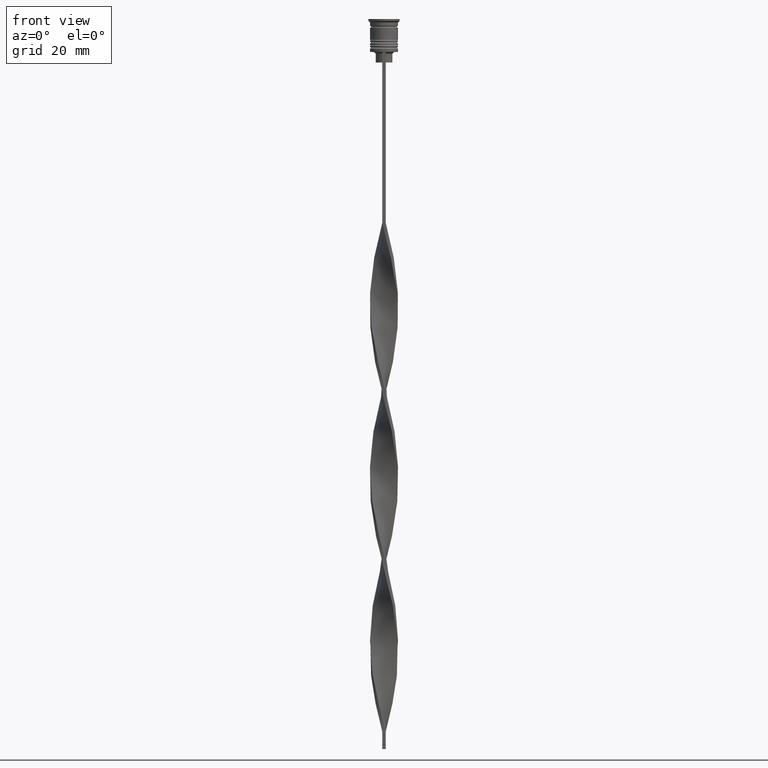
[diagram: clean part render]
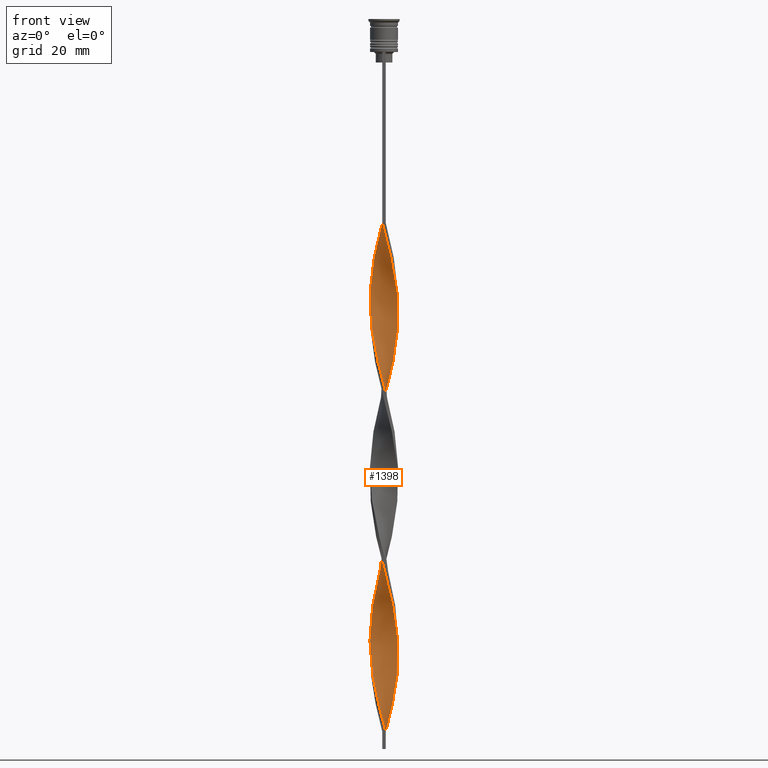
[diagram: same view with one face highlighted and labeled with its STEP entity id]
A machine part, front view. The second image highlights one B-rep face of the part: STEP entity #1398.
In plain terms, the highlighted face is a freeform B-spline surface patch.
Its self-contained STEP definition (entity closure, byte-faithful):
#12 = CARTESIAN_POINT ( 'NONE',  ( 0.6163684578805430636, 4.001202492166771485, -151.5392156862744741 ) ) ;
#16 = CARTESIAN_POINT ( 'NONE',  ( -3.151094474987766958, -2.541679576361500548, -188.7549019607843093 ) ) ;
#30 = CARTESIAN_POINT ( 'NONE',  ( 0.4999999999999994449, -4.000000000000000000, -107.1666666666666572 ) ) ;
#54 = CARTESIAN_POINT ( 'NONE',  ( -4.029070884911789108, -0.1287936502943091699, -81.40196078431371518 ) ) ;
#58 = CARTESIAN_POINT ( 'NONE',  ( -0.6163684578805426195, -4.001202492166770597, -200.2058823529411882 ) ) ;
#68 = CARTESIAN_POINT ( 'NONE',  ( -0.1293454150318809337, -4.046331823121015248, -59.93137254901961342 ) ) ;
#71 = CARTESIAN_POINT ( 'NONE',  ( 3.564473500076195123, 1.919390561205867707, -137.2254901960784821 ) ) ;
#112 = CARTESIAN_POINT ( 'NONE',  ( -0.5000000000000000000, -4.000000000000000000, -58.50000000000000000 ) ) ;
#123 = CARTESIAN_POINT ( 'NONE',  ( 1.582314657248345968, 3.726367102775659745, -102.8725490196078312 ) ) ;
#133 = CARTESIAN_POINT ( 'NONE',  ( -3.710471077655235206, -1.575564781874741138, -184.4607843137254690 ) ) ;
#149 = CARTESIAN_POINT ( 'NONE',  ( -0.9787305500464342778, 3.910509750710998933, -112.8921568627450966 ) ) ;
#153 = CARTESIAN_POINT ( 'NONE',  ( -0.6163684578805426195, -4.001202492166771485, -200.2058823529411598 ) ) ;
#159 = CARTESIAN_POINT ( 'NONE',  ( -3.936802525448487522, 0.8669405260007250202, -130.0686274509803866 ) ) ;
#170 = CARTESIAN_POINT ( 'NONE',  ( 2.240090901653235100, 3.372169066272034499, -100.0098039215686327 ) ) ;
#176 = CARTESIAN_POINT ( 'NONE',  ( -3.151094474987767402, -2.541679576361500548, -188.7549019607843093 ) ) ;
#180 = CARTESIAN_POINT ( 'NONE',  ( 2.325278115975899507, -3.292883490705915239, -69.95098039215686470 ) ) ;
#188 = CARTESIAN_POINT ( 'NONE',  ( 4.029070884911789996, -0.1287936502943097528, -84.26470588235294201 ) ) ;
#195 = CARTESIAN_POINT ( 'NONE',  ( 3.856468655234276621, -1.231739002543613237, -79.97058823529411598 ) ) ;
#197 = CARTESIAN_POINT ( 'NONE',  ( -2.630408706874892921, -3.077414741952791744, -94.28431372549020750 ) ) ;
#202 = CARTESIAN_POINT ( 'NONE',  ( -1.582314657248346412, -3.726367102775658413, -151.5392156862744741 ) ) ;
#210 = CARTESIAN_POINT ( 'NONE',  ( -0.8706545849681190941, 3.953668176878984752, -59.93137254901961342 ) ) ;
#216 = CARTESIAN_POINT ( 'NONE',  ( -0.9787305500464337227, -3.910509750710999821, -101.4411764705882320 ) ) ;
#225 = CARTESIAN_POINT ( 'NONE',  ( -3.064287033196558152, -2.619187847059358365, -144.3823529411764639 ) ) ;
#237 = CARTESIAN_POINT ( 'NONE',  ( 4.029070884911789996, -0.1287936502943097528, -181.5980392156862706 ) ) ;
#241 = CARTESIAN_POINT ( 'NONE',  ( 2.821583537095226468, -2.903135856687523830, -117.1862745098039227 ) ) ;
#251 = CARTESIAN_POINT ( 'NONE',  ( -3.306990529297890724, -2.335239837431195120, -142.9509803921568789 ) ) ;
#255 = CARTESIAN_POINT ( 'NONE',  ( -3.564473500076193790, -1.919390561205868817, -88.55882352941175384 ) ) ;
#261 = CARTESIAN_POINT ( 'NONE',  ( 1.226484621108232531, 3.840017639827321805, -201.6372549019607732 ) ) ;
#267 = CARTESIAN_POINT ( 'NONE',  ( 1.582314657248345968, 3.726367102775659745, -200.2058823529411598 ) ) ;
#273 = CARTESIAN_POINT ( 'NONE',  ( 3.357783987531979708, 2.230535068783685571, -138.6568627450980387 ) ) ;
#282 = CARTESIAN_POINT ( 'NONE',  ( 3.856468655234277065, -1.231739002543613237, -177.3039215686274588 ) ) ;
#292 = CARTESIAN_POINT ( 'NONE',  ( 2.630408706874893365, -3.077414741952792188, -168.7156862745097783 ) ) ;
#297 = CARTESIAN_POINT ( 'NONE',  ( -2.630408706874892921, -3.077414741952791744, -191.6176470588235077 ) ) ;
#308 = CARTESIAN_POINT ( 'NONE',  ( -0.5000000000000000000, 4.000000000000000000, -155.8333333333333144 ) ) ;
#327 = CARTESIAN_POINT ( 'NONE',  ( -2.020147525076906536, -3.508352239459040067, -97.14705882352939170 ) ) ;
#348 = CARTESIAN_POINT ( 'NONE',  ( 2.020147525076906980, 3.508352239459039623, -145.8137254901960489 ) ) ;
#370 = CARTESIAN_POINT ( 'NONE',  ( -3.493386227310586012, 2.011529931876905763, -170.1470588235293917 ) ) ;
#389 =( BOUNDED_CURVE ( )  B_SPLINE_CURVE ( 2, ( #2610, #1354, #1045, #2256, #739, #3799, #1089, #1966, #2300, #3508, #2000, #2670, #1147, #494, #3564, #2073, #3833, #510, #1718, #2401, #3269, #255, #3548, #1163, #3240, #197, #2019, #1123, #530, #3604, #216, #2947, #1751, #1442, #2033, #1732, #2372, #3583, #2355, #1795, #852, #241, #3873, #831, #2960, #3855, #2998, #3287, #815, #2980, #2050, #1462, #878, #554, #1423, #2646, #273, #574, #1498, #1774, #2689, #1479, #2709, #2096, #2335, #3896, #3254, #1188, #3309, #3015, #2728, #3923, #1209, #3526, #797, #3941, #3056, #676, #2444, #1815, #3037, #3636, #611, #2421, #2173, #2762, #631, #1269, #896, #2823, #3695, #16, #983, #297, #3385, #2192, #3072, #3368, #2113, #58, #914, #3096, #650 ),
 .UNSPECIFIED., .F., .T. ) 
 B_SPLINE_CURVE_WITH_KNOTS ( ( 3, 2, 2, 2, 2, 2, 2, 2, 2, 2, 2, 2, 2, 2, 2, 2, 2, 2, 2, 2, 2, 2, 2, 2, 2, 2, 2, 2, 2, 2, 2, 2, 2, 2, 2, 2, 2, 2, 2, 2, 2, 2, 2, 2, 2, 2, 2, 2, 2, 2, 2, 3 ),
 ( 0.000000000000000000, 0.01470588235294117453, 0.02941176470588234906, 0.04411764705882353227, 0.05882352941176469813, 0.07352941176470588480, 0.08823529411764706454, 0.1029411764705882443, 0.1176470588235293963, 0.1323529411764705899, 0.1470588235294117696, 0.1617647058823529493, 0.1764705882352941291, 0.1911764705882352811, 0.2058823529411764885, 0.2205882352941176405, 0.2352941176470587925, 0.2500000000000000000, 0.2647058823529411797, 0.2794117647058823595, 0.2941176470588235392, 0.3088235294117647189, 0.3235294117647058987, 0.3382352941176470229, 0.3529411764705882582, 0.3676470588235294379, 0.3823529411764705621, 0.3970588235294117418, 0.4117647058823529771, 0.4264705882352941013, 0.4411764705882352811, 0.4558823529411764608, 0.4705882352941175850, 0.4852941176470588203, 0.5000000000000000000, 0.5147058823529411242, 0.5294117647058823595, 0.5441176470588234837, 0.5588235294117647189, 0.5735294117647058432, 0.5882352941176470784, 0.6029411764705882026, 0.6176470588235294379, 0.6323529411764705621, 0.6470588235294117974, 0.6617647058823529216, 0.6764705882352940458, 0.6911764705882351700, 0.7058823529411765163, 0.7205882352941176405, 0.7352941176470588758, 0.7500000000000000000 ),
 .UNSPECIFIED. ) 
 CURVE ( )  GEOMETRIC_REPRESENTATION_ITEM ( )  RATIONAL_B_SPLINE_CURVE ( ( 1.000000000000000000, 0.9957341762950344677, 1.000000000000000000, 0.9957341762950344677, 1.000000000000000000, 0.9957341762950344677, 1.000000000000000000, 0.9957341762950344677, 1.000000000000000000, 0.9957341762950344677, 1.000000000000000000, 0.9957341762950344677, 1.000000000000000000, 0.9957341762950344677, 1.000000000000000000, 0.9957341762950344677, 1.000000000000000000, 0.9957341762950344677, 1.000000000000000000, 0.9957341762950344677, 1.000000000000000000, 0.9957341762950344677, 1.000000000000000000, 0.9957341762950344677, 1.000000000000000000, 0.9957341762950344677, 1.000000000000000000, 0.9957341762950344677, 1.000000000000000000, 0.9957341762950344677, 1.000000000000000000, 0.9957341762950344677, 1.000000000000000000, 0.9957341762950344677, 1.000000000000000000, 0.9957341762950344677, 1.000000000000000000, 0.9957341762950344677, 1.000000000000000000, 0.9957341762950344677, 1.000000000000000000, 0.9957341762950344677, 1.000000000000000000, 0.9957341762950344677, 1.000000000000000000, 0.9957341762950344677, 1.000000000000000000, 0.9957341762950344677, 1.000000000000000000, 0.9957341762950344677, 1.000000000000000000, 0.9957341762950344677, 1.000000000000000000, 0.9957341762950344677, 1.000000000000000000, 0.9957341762950344677, 1.000000000000000000, 0.9957341762950344677, 1.000000000000000000, 0.9957341762950344677, 1.000000000000000000, 0.9957341762950344677, 1.000000000000000000, 0.9957341762950344677, 1.000000000000000000, 0.9957341762950344677, 1.000000000000000000, 0.9957341762950344677, 1.000000000000000000, 0.9957341762950344677, 1.000000000000000000, 0.9957341762950344677, 1.000000000000000000, 0.9957341762950344677, 1.000000000000000000, 0.9957341762950344677, 1.000000000000000000, 0.9957341762950344677, 1.000000000000000000, 0.9957341762950344677, 1.000000000000000000, 0.9957341762950344677, 1.000000000000000000, 0.9957341762950344677, 1.000000000000000000, 0.9957341762950344677, 1.000000000000000000, 0.9957341762950344677, 1.000000000000000000, 0.9957341762950344677, 1.000000000000000000, 0.9957341762950344677, 1.000000000000000000, 0.9957341762950344677, 1.000000000000000000, 0.9957341762950344677, 1.000000000000000000, 0.9957341762950344677, 1.000000000000000000, 0.9957341762950344677, 1.000000000000000000, 0.9957341762950344677, 1.000000000000000000 ) ) 
 REPRESENTATION_ITEM ( '' )  );
#408 = CARTESIAN_POINT ( 'NONE',  ( -3.856468655234276621, -1.231739002543613681, -183.0294117647059124 ) ) ;
#415 = CARTESIAN_POINT ( 'NONE',  ( 3.710471077655235206, -1.575564781874740694, -78.53921568627450256 ) ) ;
#431 = CARTESIAN_POINT ( 'NONE',  ( -0.2435115214243305515, -4.023767157643892034, -201.6372549019607732 ) ) ;
#434 = CARTESIAN_POINT ( 'NONE',  ( -3.564473500076194235, 1.919390561205869039, -125.7745098039216032 ) ) ;
#442 = CARTESIAN_POINT ( 'NONE',  ( -1.680620083644616569, 3.664084624357134334, -115.7549019607843093 ) ) ;
#451 = CARTESIAN_POINT ( 'NONE',  ( 3.493386227310586456, 2.011529931876905319, -92.85294117647057988 ) ) ;
#458 = CARTESIAN_POINT ( 'NONE',  ( 3.493386227310586456, 2.011529931876905319, -92.85294117647057988 ) ) ;
#469 = CARTESIAN_POINT ( 'NONE',  ( -0.2435115214243295800, 4.023767157643892034, -110.0294117647058698 ) ) ;
#480 = CARTESIAN_POINT ( 'NONE',  ( 1.226484621108232531, 3.840017639827321805, -104.3039215686274446 ) ) ;
#491 = CARTESIAN_POINT ( 'NONE',  ( 0.6163684578805417313, -4.001202492166771485, -62.79411764705881893 ) ) ;
#494 = CARTESIAN_POINT ( 'NONE',  ( -3.927262761293755400, 0.9829235285346255013, -77.10784313725490335 ) ) ;
#497 = CARTESIAN_POINT ( 'NONE',  ( -3.927262761293755400, -0.9829235285346239470, -137.2254901960784537 ) ) ;
#507 = CARTESIAN_POINT ( 'NONE',  ( 1.226484621108232531, 3.840017639827321805, -201.6372549019607732 ) ) ;
#510 = CARTESIAN_POINT ( 'NONE',  ( -4.017136395662697979, -0.5021420494578370253, -82.83333333333332860 ) ) ;
#511 =( BOUNDED_CURVE ( )  B_SPLINE_CURVE ( 2, ( #112, #68, #2514, #2556, #2245, #2616, #1109, #2896, #3496, #747, #1427, #2305, #3478, #2025, #3227, #1690, #1077, #1970, #188, #765, #3194, #3211, #1051, #3515, #458, #2288, #1987, #1410, #2630, #170, #821, #3823, #480, #2916, #2320, #1133, #1396, #2651, #149, #3244, #442, #1093, #783, #3839, #3533, #2265, #3804, #1711, #2966, #2342, #3553, #2039, #802, #2005, #3259, #497, #1722, #2934, #1671, #515, #225, #1377, #2593, #2950, #3783, #202, #1736, #2575, #3762, #2379, #619, #902, #3355, #536, #3274, #1824, #837, #3862, #2118, #1469, #3020, #3881, #2361, #282, #3587, #3570, #3905, #2429, #2056, #3928, #2450, #3004, #1842, #3607, #1505, #2694, #2103, #1228, #3314, #1800, #261, #561, #1526 ),
 .UNSPECIFIED., .F., .T. ) 
 B_SPLINE_CURVE_WITH_KNOTS ( ( 3, 2, 2, 2, 2, 2, 2, 2, 2, 2, 2, 2, 2, 2, 2, 2, 2, 2, 2, 2, 2, 2, 2, 2, 2, 2, 2, 2, 2, 2, 2, 2, 2, 2, 2, 2, 2, 2, 2, 2, 2, 2, 2, 2, 2, 2, 2, 2, 2, 2, 2, 3 ),
 ( 0.000000000000000000, 0.01470588235294117453, 0.02941176470588234906, 0.04411764705882353227, 0.05882352941176469813, 0.07352941176470588480, 0.08823529411764706454, 0.1029411764705882443, 0.1176470588235293963, 0.1323529411764705899, 0.1470588235294117696, 0.1617647058823529493, 0.1764705882352941291, 0.1911764705882352811, 0.2058823529411764885, 0.2205882352941176405, 0.2352941176470587925, 0.2500000000000000000, 0.2647058823529411797, 0.2794117647058823595, 0.2941176470588235392, 0.3088235294117647189, 0.3235294117647058987, 0.3382352941176470229, 0.3529411764705882582, 0.3676470588235294379, 0.3823529411764705621, 0.3970588235294117418, 0.4117647058823529771, 0.4264705882352941013, 0.4411764705882352811, 0.4558823529411764608, 0.4705882352941175850, 0.4852941176470588203, 0.5000000000000000000, 0.5147058823529411242, 0.5294117647058823595, 0.5441176470588234837, 0.5588235294117647189, 0.5735294117647058432, 0.5882352941176470784, 0.6029411764705882026, 0.6176470588235294379, 0.6323529411764705621, 0.6470588235294117974, 0.6617647058823529216, 0.6764705882352940458, 0.6911764705882351700, 0.7058823529411765163, 0.7205882352941176405, 0.7352941176470588758, 0.7500000000000000000 ),
 .UNSPECIFIED. ) 
 CURVE ( )  GEOMETRIC_REPRESENTATION_ITEM ( )  RATIONAL_B_SPLINE_CURVE ( ( 1.000000000000000000, 0.9957341762950344677, 1.000000000000000000, 0.9957341762950344677, 1.000000000000000000, 0.9957341762950344677, 1.000000000000000000, 0.9957341762950344677, 1.000000000000000000, 0.9957341762950344677, 1.000000000000000000, 0.9957341762950344677, 1.000000000000000000, 0.9957341762950344677, 1.000000000000000000, 0.9957341762950344677, 1.000000000000000000, 0.9957341762950344677, 1.000000000000000000, 0.9957341762950344677, 1.000000000000000000, 0.9957341762950344677, 1.000000000000000000, 0.9957341762950344677, 1.000000000000000000, 0.9957341762950344677, 1.000000000000000000, 0.9957341762950344677, 1.000000000000000000, 0.9957341762950344677, 1.000000000000000000, 0.9957341762950344677, 1.000000000000000000, 0.9957341762950344677, 1.000000000000000000, 0.9957341762950344677, 1.000000000000000000, 0.9957341762950344677, 1.000000000000000000, 0.9957341762950344677, 1.000000000000000000, 0.9957341762950344677, 1.000000000000000000, 0.9957341762950344677, 1.000000000000000000, 0.9957341762950344677, 1.000000000000000000, 0.9957341762950344677, 1.000000000000000000, 0.9957341762950344677, 1.000000000000000000, 0.9957341762950344677, 1.000000000000000000, 0.9957341762950344677, 1.000000000000000000, 0.9957341762950344677, 1.000000000000000000, 0.9957341762950344677, 1.000000000000000000, 0.9957341762950344677, 1.000000000000000000, 0.9957341762950344677, 1.000000000000000000, 0.9957341762950344677, 1.000000000000000000, 0.9957341762950344677, 1.000000000000000000, 0.9957341762950344677, 1.000000000000000000, 0.9957341762950344677, 1.000000000000000000, 0.9957341762950344677, 1.000000000000000000, 0.9957341762950344677, 1.000000000000000000, 0.9957341762950344677, 1.000000000000000000, 0.9957341762950344677, 1.000000000000000000, 0.9957341762950344677, 1.000000000000000000, 0.9957341762950344677, 1.000000000000000000, 0.9957341762950344677, 1.000000000000000000, 0.9957341762950344677, 1.000000000000000000, 0.9957341762950344677, 1.000000000000000000, 0.9957341762950344677, 1.000000000000000000, 0.9957341762950344677, 1.000000000000000000, 0.9957341762950344677, 1.000000000000000000, 0.9957341762950344677, 1.000000000000000000, 0.9957341762950344677, 1.000000000000000000, 0.9957341762950344677, 1.000000000000000000, 0.9957341762950344677, 1.000000000000000000 ) ) 
 REPRESENTATION_ITEM ( '' )  );
#515 = CARTESIAN_POINT ( 'NONE',  ( -3.306990529297890280, -2.335239837431195120, -142.9509803921568789 ) ) ;
#526 = CARTESIAN_POINT ( 'NONE',  ( -4.041005374160881125, 0.2445547488692185190, -79.97058823529411598 ) ) ;
#530 = CARTESIAN_POINT ( 'NONE',  ( -1.680620083644616125, -3.664084624357134778, -98.57843137254901933 ) ) ;
#536 = CARTESIAN_POINT ( 'NONE',  ( 1.341092642212326380, -3.819817009255230822, -162.9901960784313530 ) ) ;
#551 = CARTESIAN_POINT ( 'NONE',  ( -1.911202779450789979, -3.549268084523846678, -150.1078431372548891 ) ) ;
#554 = CARTESIAN_POINT ( 'NONE',  ( 3.856468655234277065, 1.231739002543614125, -134.3627450980391984 ) ) ;
#561 = CARTESIAN_POINT ( 'NONE',  ( 0.8706545849681186500, 3.953668176878986085, -203.0686274509803582 ) ) ;
#570 = CARTESIAN_POINT ( 'NONE',  ( 3.856468655234276621, -1.231739002543613237, -177.3039215686274304 ) ) ;
#574 = CARTESIAN_POINT ( 'NONE',  ( 3.151094474987766958, 2.541679576361500104, -140.0882352941176237 ) ) ;
#586 = CARTESIAN_POINT ( 'NONE',  ( 2.325278115975899507, -3.292883490705915239, -167.2843137254901933 ) ) ;
#606 = CARTESIAN_POINT ( 'NONE',  ( 2.890751590931330828, 2.809547159157144591, -141.5196078431372371 ) ) ;
#611 = CARTESIAN_POINT ( 'NONE',  ( -3.984134067727318040, 0.6137391387019215383, -175.8725490196078454 ) ) ;
#619 = CARTESIAN_POINT ( 'NONE',  ( 0.2435115214243304405, -4.023767157643892034, -158.6960784313725412 ) ) ;
#626 = CARTESIAN_POINT ( 'NONE',  ( -3.064287033196558596, 2.619187847059357921, -167.2843137254901933 ) ) ;
#631 = CARTESIAN_POINT ( 'NONE',  ( -3.936802525448487522, -0.8669405260007247982, -181.5980392156862706 ) ) ;
#645 = CARTESIAN_POINT ( 'NONE',  ( 3.493386227310585568, -2.011529931876906208, -121.4803921568627345 ) ) ;
#650 = CARTESIAN_POINT ( 'NONE',  ( 0.4999999999999994449, -4.000000000000000000, -204.5000000000000000 ) ) ;
#665 =( BOUNDED_SURFACE ( )  B_SPLINE_SURFACE ( 1, 2, ( 
 ( #3504, #3447, #3158, #491, #793, #1716, #776, #1979, #180, #1386, #1043, #3741, #1367, #1026, #415, #195, #2235, #715, #1101, #3772, #2313, #1649, #1998, #3522, #451, #3206, #2872, #1403, #2253, #3467, #1963, #123, #3218, #1064, #2278, #2889, #469, #2015, #736, #1349, #2566, #3237, #3184, #1700, #2928, #3755, #2624, #434, #1681, #2903, #159, #2607, #3796, #1085, #3817, #3830, #1458, #2995, #2030, #251, #3918, #1160, #1183, #2685, #551, #3031, #1205, #1494, #2418, #1476, #3580, #890, #3891, #2706, #1771, #1729, #586, #292, #3251, #2395, #3600, #2640, #873, #570, #1119, #1746, #237, #3543, #3870, #2091, #2957, #3561, #812, #2723, #2369, #3305, #1790, #2331, #3012, #267, #507, #2976, #849 ),
 ( #828, #210, #3613, #2069, #1438, #2108, #3282, #3320, #1143, #2665, #1809, #2047, #3851, #2351, #3266, #526, #54, #2517, #3067, #3426, #3670, #1577, #1535, #2169, #1301, #3380, #1866, #327, #3652, #3710, #691, #1264, #1915, #2482, #30, #952, #2818, #1281, #1218, #3630, #2211, #1000, #3132, #2500, #645, #1893, #3091, #2758, #1516, #1555, #2744, #909, #3936, #2438, #2128, #71, #1848, #3342, #606, #3689, #1834, #348, #2798, #3052, #3115, #12, #1235, #931, #308, #976, #2775, #2187, #3364, #3400, #2457, #2150, #626, #669, #370, #1602, #1381, #2899, #2838, #1990, #710, #2865, #1933, #408, #133, #3485, #1362, #176, #1618, #3179, #752, #3736, #1973, #1695, #2883, #153, #431, #2271, #788 ) ),
 .UNSPECIFIED., .F., .F., .F. ) 
 B_SPLINE_SURFACE_WITH_KNOTS ( ( 2, 2 ),
 ( 3, 2, 2, 2, 2, 2, 2, 2, 2, 2, 2, 2, 2, 2, 2, 2, 2, 2, 2, 2, 2, 2, 2, 2, 2, 2, 2, 2, 2, 2, 2, 2, 2, 2, 2, 2, 2, 2, 2, 2, 2, 2, 2, 2, 2, 2, 2, 2, 2, 2, 2, 3 ),
 ( 0.000000000000000000, 1.000000000000000000 ),
 ( 0.000000000000000000, 0.01470588235294117627, 0.02941176470588235253, 0.04411764705882353227, 0.05882352941176470507, 0.07352941176470588480, 0.08823529411764706454, 0.1029411764705882304, 0.1176470588235294101, 0.1323529411764705899, 0.1470588235294117696, 0.1617647058823529493, 0.1764705882352941291, 0.1911764705882352811, 0.2058823529411764608, 0.2205882352941176405, 0.2352941176470588203, 0.2500000000000000000, 0.2647058823529411797, 0.2794117647058823595, 0.2941176470588235392, 0.3088235294117647189, 0.3235294117647058987, 0.3382352941176470784, 0.3529411764705882582, 0.3676470588235294379, 0.3823529411764705621, 0.3970588235294117418, 0.4117647058823529216, 0.4264705882352941013, 0.4411764705882352811, 0.4558823529411764608, 0.4705882352941176405, 0.4852941176470588203, 0.5000000000000000000, 0.5147058823529411242, 0.5294117647058823595, 0.5441176470588234837, 0.5588235294117647189, 0.5735294117647058432, 0.5882352941176470784, 0.6029411764705882026, 0.6176470588235294379, 0.6323529411764705621, 0.6470588235294117974, 0.6617647058823529216, 0.6764705882352941568, 0.6911764705882352811, 0.7058823529411765163, 0.7205882352941176405, 0.7352941176470588758, 0.7500000000000000000 ),
 .UNSPECIFIED. ) 
 GEOMETRIC_REPRESENTATION_ITEM ( )  RATIONAL_B_SPLINE_SURFACE ( (
 ( 1.000000000000000000, 0.9957341762950344677, 1.000000000000000000, 0.9957341762950344677, 1.000000000000000000, 0.9957341762950344677, 1.000000000000000000, 0.9957341762950344677, 1.000000000000000000, 0.9957341762950344677, 1.000000000000000000, 0.9957341762950344677, 1.000000000000000000, 0.9957341762950344677, 1.000000000000000000, 0.9957341762950344677, 1.000000000000000000, 0.9957341762950344677, 1.000000000000000000, 0.9957341762950344677, 1.000000000000000000, 0.9957341762950344677, 1.000000000000000000, 0.9957341762950344677, 1.000000000000000000, 0.9957341762950344677, 1.000000000000000000, 0.9957341762950344677, 1.000000000000000000, 0.9957341762950344677, 1.000000000000000000, 0.9957341762950344677, 1.000000000000000000, 0.9957341762950344677, 1.000000000000000000, 0.9957341762950344677, 1.000000000000000000, 0.9957341762950344677, 1.000000000000000000, 0.9957341762950344677, 1.000000000000000000, 0.9957341762950344677, 1.000000000000000000, 0.9957341762950344677, 1.000000000000000000, 0.9957341762950344677, 1.000000000000000000, 0.9957341762950344677, 1.000000000000000000, 0.9957341762950344677, 1.000000000000000000, 0.9957341762950344677, 1.000000000000000000, 0.9957341762950344677, 1.000000000000000000, 0.9957341762950344677, 1.000000000000000000, 0.9957341762950344677, 1.000000000000000000, 0.9957341762950344677, 1.000000000000000000, 0.9957341762950344677, 1.000000000000000000, 0.9957341762950344677, 1.000000000000000000, 0.9957341762950344677, 1.000000000000000000, 0.9957341762950344677, 1.000000000000000000, 0.9957341762950344677, 1.000000000000000000, 0.9957341762950344677, 1.000000000000000000, 0.9957341762950344677, 1.000000000000000000, 0.9957341762950344677, 1.000000000000000000, 0.9957341762950344677, 1.000000000000000000, 0.9957341762950344677, 1.000000000000000000, 0.9957341762950344677, 1.000000000000000000, 0.9957341762950344677, 1.000000000000000000, 0.9957341762950344677, 1.000000000000000000, 0.9957341762950344677, 1.000000000000000000, 0.9957341762950344677, 1.000000000000000000, 0.9957341762950344677, 1.000000000000000000, 0.9957341762950344677, 1.000000000000000000, 0.9957341762950344677, 1.000000000000000000, 0.9957341762950344677, 1.000000000000000000, 0.9957341762950344677, 1.000000000000000000, 0.9957341762950344677, 1.000000000000000000),
 ( 1.000000000000000000, 0.9957341762950344677, 1.000000000000000000, 0.9957341762950344677, 1.000000000000000000, 0.9957341762950344677, 1.000000000000000000, 0.9957341762950344677, 1.000000000000000000, 0.9957341762950344677, 1.000000000000000000, 0.9957341762950344677, 1.000000000000000000, 0.9957341762950344677, 1.000000000000000000, 0.9957341762950344677, 1.000000000000000000, 0.9957341762950344677, 1.000000000000000000, 0.9957341762950344677, 1.000000000000000000, 0.9957341762950344677, 1.000000000000000000, 0.9957341762950344677, 1.000000000000000000, 0.9957341762950344677, 1.000000000000000000, 0.9957341762950344677, 1.000000000000000000, 0.9957341762950344677, 1.000000000000000000, 0.9957341762950344677, 1.000000000000000000, 0.9957341762950344677, 1.000000000000000000, 0.9957341762950344677, 1.000000000000000000, 0.9957341762950344677, 1.000000000000000000, 0.9957341762950344677, 1.000000000000000000, 0.9957341762950344677, 1.000000000000000000, 0.9957341762950344677, 1.000000000000000000, 0.9957341762950344677, 1.000000000000000000, 0.9957341762950344677, 1.000000000000000000, 0.9957341762950344677, 1.000000000000000000, 0.9957341762950344677, 1.000000000000000000, 0.9957341762950344677, 1.000000000000000000, 0.9957341762950344677, 1.000000000000000000, 0.9957341762950344677, 1.000000000000000000, 0.9957341762950344677, 1.000000000000000000, 0.9957341762950344677, 1.000000000000000000, 0.9957341762950344677, 1.000000000000000000, 0.9957341762950344677, 1.000000000000000000, 0.9957341762950344677, 1.000000000000000000, 0.9957341762950344677, 1.000000000000000000, 0.9957341762950344677, 1.000000000000000000, 0.9957341762950344677, 1.000000000000000000, 0.9957341762950344677, 1.000000000000000000, 0.9957341762950344677, 1.000000000000000000, 0.9957341762950344677, 1.000000000000000000, 0.9957341762950344677, 1.000000000000000000, 0.9957341762950344677, 1.000000000000000000, 0.9957341762950344677, 1.000000000000000000, 0.9957341762950344677, 1.000000000000000000, 0.9957341762950344677, 1.000000000000000000, 0.9957341762950344677, 1.000000000000000000, 0.9957341762950344677, 1.000000000000000000, 0.9957341762950344677, 1.000000000000000000, 0.9957341762950344677, 1.000000000000000000, 0.9957341762950344677, 1.000000000000000000, 0.9957341762950344677, 1.000000000000000000) ) ) 
 REPRESENTATION_ITEM ( '' )  SURFACE ( )  );
#669 = CARTESIAN_POINT ( 'NONE',  ( -3.306990529297891168, 2.335239837431193788, -168.7156862745097783 ) ) ;
#676 = CARTESIAN_POINT ( 'NONE',  ( -3.306990529297890724, 2.335239837431193788, -168.7156862745097783 ) ) ;
#691 = CARTESIAN_POINT ( 'NONE',  ( -0.9787305500464337227, -3.910509750710999821, -101.4411764705882320 ) ) ;
#700 = VERTEX_POINT ( 'NONE', #1338 ) ;
#710 = CARTESIAN_POINT ( 'NONE',  ( -4.029070884911789108, -0.1287936502943091699, -178.7352941176470438 ) ) ;
#715 = CARTESIAN_POINT ( 'NONE',  ( 4.017136395662697979, -0.5021420494578374694, -82.83333333333332860 ) ) ;
#736 = CARTESIAN_POINT ( 'NONE',  ( -0.9787305500464342778, 3.910509750710998933, -112.8921568627450966 ) ) ;
#739 = CARTESIAN_POINT ( 'NONE',  ( -1.911202779450789535, 3.549268084523846678, -64.22549019607842524 ) ) ;
#747 = CARTESIAN_POINT ( 'NONE',  ( 2.630408706874892921, -3.077414741952791744, -71.38235294117646390 ) ) ;
#752 = CARTESIAN_POINT ( 'NONE',  ( -2.325278115975899951, -3.292883490705914795, -193.0490196078431211 ) ) ;
#758 = VERTEX_POINT ( 'NONE', #971 ) ;
#765 = CARTESIAN_POINT ( 'NONE',  ( 4.041005374160881125, 0.2445547488692189353, -85.69607843137254122 ) ) ;
#775 = VERTEX_POINT ( 'NONE', #1886 ) ;
#776 = CARTESIAN_POINT ( 'NONE',  ( 1.680620083644616125, -3.664084624357134778, -67.08823529411763786 ) ) ;
#783 = CARTESIAN_POINT ( 'NONE',  ( -2.325278115975899507, 3.292883490705915239, -118.6176470588235219 ) ) ;
#788 = CARTESIAN_POINT ( 'NONE',  ( 0.4999999999999994449, -4.000000000000000000, -204.5000000000000000 ) ) ;
#793 = CARTESIAN_POINT ( 'NONE',  ( 0.9787305500464337227, -3.910509750710999821, -64.22549019607842524 ) ) ;
#797 = CARTESIAN_POINT ( 'NONE',  ( -2.530837219374230340, 3.137652461479778943, -164.4215686274509665 ) ) ;
#802 = CARTESIAN_POINT ( 'NONE',  ( -4.029070884911789996, 0.1287936502943111128, -132.9313725490196134 ) ) ;
#812 = CARTESIAN_POINT ( 'NONE',  ( 3.493386227310586456, 2.011529931876905319, -190.1862745098039227 ) ) ;
#815 = CARTESIAN_POINT ( 'NONE',  ( 3.984134067727318040, -0.6137391387019228706, -127.2058823529411740 ) ) ;
#821 = CARTESIAN_POINT ( 'NONE',  ( 1.911202779450789535, 3.549268084523846678, -101.4411764705882320 ) ) ;
#822 = EDGE_CURVE ( 'NONE', #3395, #700, #511, .T. ) ;
#828 = CARTESIAN_POINT ( 'NONE',  ( -0.5000000000000000000, 4.000000000000000000, -58.50000000000000000 ) ) ;
#831 = CARTESIAN_POINT ( 'NONE',  ( 3.306990529297891168, -2.335239837431193344, -120.0490196078431353 ) ) ;
#837 = CARTESIAN_POINT ( 'NONE',  ( 2.325278115975899507, -3.292883490705915239, -167.2843137254901933 ) ) ;
#849 = CARTESIAN_POINT ( 'NONE',  ( 0.5000000000000005551, 4.000000000000000000, -204.5000000000000000 ) ) ;
#852 = CARTESIAN_POINT ( 'NONE',  ( 2.530837219374230784, -3.137652461479778498, -115.7549019607843093 ) ) ;
#873 = CARTESIAN_POINT ( 'NONE',  ( 3.710471077655235206, -1.575564781874740694, -175.8725490196078454 ) ) ;
#878 = CARTESIAN_POINT ( 'NONE',  ( 3.936802525448487522, 0.8669405260007234659, -132.9313725490196134 ) ) ;
#890 = CARTESIAN_POINT ( 'NONE',  ( 0.6163684578805417313, -4.001202492166771485, -160.1274509803922115 ) ) ;
#896 = CARTESIAN_POINT ( 'NONE',  ( -3.710471077655235206, -1.575564781874741138, -184.4607843137254690 ) ) ;
#902 = CARTESIAN_POINT ( 'NONE',  ( 0.6163684578805417313, -4.001202492166770597, -160.1274509803921831 ) ) ;
#903 = DIRECTION ( 'NONE',  ( 0.000000000000000000, 1.000000000000000000, 0.000000000000000000 ) ) ;
#909 = CARTESIAN_POINT ( 'NONE',  ( 4.017136395662697979, 0.5021420494578364702, -131.5000000000000000 ) ) ;
#914 = CARTESIAN_POINT ( 'NONE',  ( -0.2435115214243305515, -4.023767157643892034, -201.6372549019607732 ) ) ;
#931 = CARTESIAN_POINT ( 'NONE',  ( -0.1293454150318810725, 4.046331823121016136, -154.4019607843137294 ) ) ;
#952 = CARTESIAN_POINT ( 'NONE',  ( 0.8706545849681194271, -3.953668176878984752, -108.5980392156862706 ) ) ;
#971 = CARTESIAN_POINT ( 'NONE',  ( 0.4999999999999994449, -4.000000000000000000, -204.5000000000000000 ) ) ;
#976 = CARTESIAN_POINT ( 'NONE',  ( -0.8706545849681190941, 3.953668176878984752, -157.2647058823529278 ) ) ;
#983 = CARTESIAN_POINT ( 'NONE',  ( -2.890751590931330384, -2.809547159157145035, -190.1862745098039227 ) ) ;
#1000 = CARTESIAN_POINT ( 'NONE',  ( 2.821583537095226468, -2.903135856687523830, -117.1862745098039369 ) ) ;
#1026 = CARTESIAN_POINT ( 'NONE',  ( 3.564473500076194235, -1.919390561205869261, -77.10784313725490335 ) ) ;
#1043 = CARTESIAN_POINT ( 'NONE',  ( 2.890751590931329940, -2.809547159157145479, -72.81372549019607732 ) ) ;
#1045 = CARTESIAN_POINT ( 'NONE',  ( -1.226484621108232309, 3.840017639827321805, -61.36274509803921262 ) ) ;
#1051 = CARTESIAN_POINT ( 'NONE',  ( 3.803522343308519016, 1.335371777428621565, -89.99019607843136725 ) ) ;
#1064 = CARTESIAN_POINT ( 'NONE',  ( 0.8706545849681186500, 3.953668176878985641, -105.7352941176470722 ) ) ;
#1077 = CARTESIAN_POINT ( 'NONE',  ( 3.936802525448486634, -0.8669405260007252423, -81.40196078431371518 ) ) ;
#1085 = CARTESIAN_POINT ( 'NONE',  ( -4.041005374160881125, -0.2445547488692193794, -134.3627450980391984 ) ) ;
#1089 = CARTESIAN_POINT ( 'NONE',  ( -2.530837219374230340, 3.137652461479778943, -67.08823529411763786 ) ) ;
#1093 = CARTESIAN_POINT ( 'NONE',  ( -2.020147525076906092, 3.508352239459040067, -117.1862745098039227 ) ) ;
#1101 = CARTESIAN_POINT ( 'NONE',  ( 4.029070884911789996, -0.1287936502943097528, -84.26470588235294201 ) ) ;
#1109 = CARTESIAN_POINT ( 'NONE',  ( 1.680620083644616125, -3.664084624357134778, -67.08823529411763786 ) ) ;
#1119 = CARTESIAN_POINT ( 'NONE',  ( 3.936802525448486634, -0.8669405260007252423, -178.7352941176470438 ) ) ;
#1123 = CARTESIAN_POINT ( 'NONE',  ( -2.020147525076906980, -3.508352239459040067, -97.14705882352940591 ) ) ;
#1133 = CARTESIAN_POINT ( 'NONE',  ( 0.1293454150318806006, 4.046331823121015248, -108.5980392156862706 ) ) ;
#1143 = CARTESIAN_POINT ( 'NONE',  ( -3.064287033196558596, 2.619187847059357921, -69.95098039215686470 ) ) ;
#1147 = CARTESIAN_POINT ( 'NONE',  ( -3.803522343308519016, 1.335371777428622009, -75.67647058823528994 ) ) ;
#1160 = CARTESIAN_POINT ( 'NONE',  ( -2.821583537095227356, -2.903135856687522498, -145.8137254901960489 ) ) ;
#1163 = CARTESIAN_POINT ( 'NONE',  ( -3.151094474987766958, -2.541679576361500548, -91.42156862745098067 ) ) ;
#1183 = CARTESIAN_POINT ( 'NONE',  ( -2.530837219374231672, -3.137652461479777610, -147.2450980392156907 ) ) ;
#1188 = CARTESIAN_POINT ( 'NONE',  ( -0.1293454150318811002, 4.046331823121016136, -154.4019607843137294 ) ) ;
#1205 = CARTESIAN_POINT ( 'NONE',  ( -1.226484621108231199, -3.840017639827321805, -152.9705882352941160 ) ) ;
#1209 = CARTESIAN_POINT ( 'NONE',  ( -1.911202779450789535, 3.549268084523846678, -161.5588235294117680 ) ) ;
#1214 = LINE ( 'NONE', #1506, #2793 ) ;
#1218 = CARTESIAN_POINT ( 'NONE',  ( 1.911202779450790201, -3.549268084523846234, -112.8921568627450966 ) ) ;
#1228 = CARTESIAN_POINT ( 'NONE',  ( 2.240090901653235100, 3.372169066272034499, -197.3431372549019613 ) ) ;
#1235 = CARTESIAN_POINT ( 'NONE',  ( 0.2435115214243293580, 4.023767157643892034, -152.9705882352941160 ) ) ;
#1264 = CARTESIAN_POINT ( 'NONE',  ( -0.6163684578805426195, -4.001202492166771485, -102.8725490196078312 ) ) ;
#1269 = CARTESIAN_POINT ( 'NONE',  ( -3.856468655234277065, -1.231739002543613681, -183.0294117647059124 ) ) ;
#1281 = CARTESIAN_POINT ( 'NONE',  ( 1.582314657248345080, -3.726367102775659745, -111.4607843137254974 ) ) ;
#1301 = CARTESIAN_POINT ( 'NONE',  ( -2.890751590931330384, -2.809547159157145035, -92.85294117647057988 ) ) ;
#1338 = CARTESIAN_POINT ( 'NONE',  ( 0.5000000000000005551, 4.000000000000000000, -204.5000000000000000 ) ) ;
#1349 = CARTESIAN_POINT ( 'NONE',  ( -1.341092642212325936, 3.819817009255230822, -114.3235294117646959 ) ) ;
#1354 = CARTESIAN_POINT ( 'NONE',  ( -0.8706545849681190941, 3.953668176878985197, -59.93137254901961342 ) ) ;
#1362 = CARTESIAN_POINT ( 'NONE',  ( -3.357783987531980152, -2.230535068783684238, -187.3235294117646959 ) ) ;
#1367 = CARTESIAN_POINT ( 'NONE',  ( 3.357783987531980152, -2.230535068783684682, -75.67647058823528994 ) ) ;
#1377 = CARTESIAN_POINT ( 'NONE',  ( -2.821583537095227356, -2.903135856687522498, -145.8137254901960489 ) ) ;
#1381 = CARTESIAN_POINT ( 'NONE',  ( -3.803522343308519016, 1.335371777428622009, -173.0098039215686185 ) ) ;
#1386 = CARTESIAN_POINT ( 'NONE',  ( 2.630408706874893365, -3.077414741952792188, -71.38235294117646390 ) ) ;
#1396 = CARTESIAN_POINT ( 'NONE',  ( -0.2435115214243295800, 4.023767157643892034, -110.0294117647058698 ) ) ;
#1398 = ADVANCED_FACE ( 'NONE', ( #3490 ), #665, .T. ) ;
#1403 = CARTESIAN_POINT ( 'NONE',  ( 2.821583537095227356, 2.903135856687522942, -97.14705882352939170 ) ) ;
#1410 = CARTESIAN_POINT ( 'NONE',  ( 2.821583537095227356, 2.903135856687522942, -97.14705882352940591 ) ) ;
#1423 = CARTESIAN_POINT ( 'NONE',  ( 3.710471077655235206, 1.575564781874740694, -135.7941176470588118 ) ) ;
#1427 = CARTESIAN_POINT ( 'NONE',  ( 2.890751590931329940, -2.809547159157145479, -72.81372549019607732 ) ) ;
#1438 = CARTESIAN_POINT ( 'NONE',  ( -1.911202779450789535, 3.549268084523846678, -64.22549019607842524 ) ) ;
#1442 = CARTESIAN_POINT ( 'NONE',  ( 0.1293454150318815721, -4.046331823121016136, -105.7352941176470722 ) ) ;
#1458 = CARTESIAN_POINT ( 'NONE',  ( -3.803522343308518572, -1.335371777428622897, -138.6568627450980387 ) ) ;
#1462 = CARTESIAN_POINT ( 'NONE',  ( 4.017136395662697979, 0.5021420494578364702, -131.5000000000000000 ) ) ;
#1469 = CARTESIAN_POINT ( 'NONE',  ( 3.151094474987766958, -2.541679576361500104, -171.5784313725490620 ) ) ;
#1476 = CARTESIAN_POINT ( 'NONE',  ( -0.1293454150318809337, -4.046331823121015248, -157.2647058823529278 ) ) ;
#1479 = CARTESIAN_POINT ( 'NONE',  ( 2.020147525076907424, 3.508352239459039623, -145.8137254901960489 ) ) ;
#1494 = CARTESIAN_POINT ( 'NONE',  ( -0.8706545849681190941, -3.953668176878985641, -154.4019607843137294 ) ) ;
#1498 = CARTESIAN_POINT ( 'NONE',  ( 2.890751590931330828, 2.809547159157144591, -141.5196078431372371 ) ) ;
#1505 = CARTESIAN_POINT ( 'NONE',  ( 3.064287033196559040, 2.619187847059357477, -193.0490196078431211 ) ) ;
#1506 = CARTESIAN_POINT ( 'NONE',  ( -0.5000000000000000000, -4.000000000000000000, -58.50000000000000000 ) ) ;
#1516 = CARTESIAN_POINT ( 'NONE',  ( 3.984134067727318040, -0.6137391387019228706, -127.2058823529411740 ) ) ;
#1526 = CARTESIAN_POINT ( 'NONE',  ( 0.5000000000000005551, 4.000000000000000000, -204.5000000000000000 ) ) ;
#1535 = CARTESIAN_POINT ( 'NONE',  ( -3.357783987531980152, -2.230535068783684238, -89.99019607843136725 ) ) ;
#1555 = CARTESIAN_POINT ( 'NONE',  ( 4.041005374160881125, -0.2445547488692170757, -128.6372549019607447 ) ) ;
#1577 = CARTESIAN_POINT ( 'NONE',  ( -3.564473500076194235, -1.919390561205868817, -88.55882352941175384 ) ) ;
#1602 = CARTESIAN_POINT ( 'NONE',  ( -3.679781925323283076, 1.687820026322619293, -171.5784313725490335 ) ) ;
#1618 = CARTESIAN_POINT ( 'NONE',  ( -2.890751590931330384, -2.809547159157145035, -190.1862745098039227 ) ) ;
#1649 = CARTESIAN_POINT ( 'NONE',  ( 3.927262761293754956, 0.9829235285346250572, -88.55882352941175384 ) ) ;
#1671 = CARTESIAN_POINT ( 'NONE',  ( -3.493386227310586900, -2.011529931876904875, -141.5196078431372371 ) ) ;
#1676 = ORIENTED_EDGE ( 'NONE', *, *, #3569, .F. ) ;
#1681 = CARTESIAN_POINT ( 'NONE',  ( -3.710471077655234762, 1.575564781874742026, -127.2058823529411740 ) ) ;
#1690 = CARTESIAN_POINT ( 'NONE',  ( 3.856468655234277065, -1.231739002543613237, -79.97058823529411598 ) ) ;
#1695 = CARTESIAN_POINT ( 'NONE',  ( -1.341092642212326824, -3.819817009255229934, -197.3431372549019898 ) ) ;
#1700 = CARTESIAN_POINT ( 'NONE',  ( -2.630408706874893809, 3.077414741952791744, -120.0490196078431211 ) ) ;
#1711 = CARTESIAN_POINT ( 'NONE',  ( -3.564473500076193790, 1.919390561205869039, -125.7745098039216032 ) ) ;
#1716 = CARTESIAN_POINT ( 'NONE',  ( 1.341092642212326380, -3.819817009255230822, -65.65686274509803866 ) ) ;
#1718 = CARTESIAN_POINT ( 'NONE',  ( -3.936802525448487522, -0.8669405260007247982, -84.26470588235294201 ) ) ;
#1722 = CARTESIAN_POINT ( 'NONE',  ( -3.803522343308518572, -1.335371777428622897, -138.6568627450980387 ) ) ;
#1729 = CARTESIAN_POINT ( 'NONE',  ( 2.020147525076906536, -3.508352239459040067, -165.8529411764705799 ) ) ;
#1732 = CARTESIAN_POINT ( 'NONE',  ( 0.8706545849681194271, -3.953668176878985197, -108.5980392156862706 ) ) ;
#1736 = CARTESIAN_POINT ( 'NONE',  ( -1.226484621108231199, -3.840017639827321805, -152.9705882352941160 ) ) ;
#1746 = CARTESIAN_POINT ( 'NONE',  ( 4.017136395662697979, -0.5021420494578374694, -180.1666666666666288 ) ) ;
#1751 = CARTESIAN_POINT ( 'NONE',  ( -0.2435115214243305515, -4.023767157643892034, -104.3039215686274446 ) ) ;
#1771 = CARTESIAN_POINT ( 'NONE',  ( 1.680620083644616125, -3.664084624357134778, -164.4215686274509665 ) ) ;
#1774 = CARTESIAN_POINT ( 'NONE',  ( 2.630408706874892033, 3.077414741952792188, -142.9509803921568789 ) ) ;
#1790 = CARTESIAN_POINT ( 'NONE',  ( 2.530837219374230340, 3.137652461479778943, -195.9117647058823479 ) ) ;
#1795 = CARTESIAN_POINT ( 'NONE',  ( 2.240090901653234212, -3.372169066272035387, -114.3235294117646959 ) ) ;
#1800 = CARTESIAN_POINT ( 'NONE',  ( 1.582314657248345968, 3.726367102775659301, -200.2058823529411882 ) ) ;
#1809 = CARTESIAN_POINT ( 'NONE',  ( -3.493386227310586012, 2.011529931876905763, -72.81372549019607732 ) ) ;
#1815 = CARTESIAN_POINT ( 'NONE',  ( -3.679781925323283076, 1.687820026322619293, -171.5784313725490620 ) ) ;
#1824 = CARTESIAN_POINT ( 'NONE',  ( 2.020147525076906980, -3.508352239459040067, -165.8529411764705799 ) ) ;
#1834 = CARTESIAN_POINT ( 'NONE',  ( 2.325278115975899063, 3.292883490705915683, -144.3823529411764639 ) ) ;
#1841 = CARTESIAN_POINT ( 'NONE',  ( 0.5000000000000002220, 1.333333333333333481, -204.5000000000000000 ) ) ;
#1842 = CARTESIAN_POINT ( 'NONE',  ( 3.493386227310586456, 2.011529931876905319, -190.1862745098039227 ) ) ;
#1848 = CARTESIAN_POINT ( 'NONE',  ( 3.357783987531979708, 2.230535068783685571, -138.6568627450980387 ) ) ;
#1866 = CARTESIAN_POINT ( 'NONE',  ( -2.325278115975899951, -3.292883490705914795, -95.71568627450979250 ) ) ;
#1886 = CARTESIAN_POINT ( 'NONE',  ( -0.5000000000000000000, 4.000000000000000000, -58.50000000000000000 ) ) ;
#1893 = CARTESIAN_POINT ( 'NONE',  ( 3.679781925323282632, -1.687820026322619960, -122.9117647058823479 ) ) ;
#1915 = CARTESIAN_POINT ( 'NONE',  ( -0.2435115214243305515, -4.023767157643892034, -104.3039215686274446 ) ) ;
#1933 = CARTESIAN_POINT ( 'NONE',  ( -3.936802525448487522, -0.8669405260007247982, -181.5980392156862706 ) ) ;
#1963 = CARTESIAN_POINT ( 'NONE',  ( 1.911202779450789535, 3.549268084523846678, -101.4411764705882320 ) ) ;
#1966 = CARTESIAN_POINT ( 'NONE',  ( -2.821583537095227356, 2.903135856687522942, -68.51960784313725128 ) ) ;
#1970 = CARTESIAN_POINT ( 'NONE',  ( 4.017136395662697979, -0.5021420494578374694, -82.83333333333332860 ) ) ;
#1973 = CARTESIAN_POINT ( 'NONE',  ( -1.680620083644616125, -3.664084624357134778, -195.9117647058823479 ) ) ;
#1979 = CARTESIAN_POINT ( 'NONE',  ( 2.020147525076906536, -3.508352239459040067, -68.51960784313723707 ) ) ;
#1987 = CARTESIAN_POINT ( 'NONE',  ( 3.064287033196559040, 2.619187847059357477, -95.71568627450979250 ) ) ;
#1990 = CARTESIAN_POINT ( 'NONE',  ( -4.041005374160881125, 0.2445547488692185190, -177.3039215686274304 ) ) ;
#1998 = CARTESIAN_POINT ( 'NONE',  ( 3.803522343308519016, 1.335371777428621565, -89.99019607843136725 ) ) ;
#2000 = CARTESIAN_POINT ( 'NONE',  ( -3.493386227310586012, 2.011529931876905763, -72.81372549019607732 ) ) ;
#2005 = CARTESIAN_POINT ( 'NONE',  ( -4.041005374160881125, -0.2445547488692193516, -134.3627450980391984 ) ) ;
#2015 = CARTESIAN_POINT ( 'NONE',  ( -0.6163684578805417313, 4.001202492166771485, -111.4607843137254974 ) ) ;
#2019 = CARTESIAN_POINT ( 'NONE',  ( -2.325278115975899951, -3.292883490705914795, -95.71568627450979250 ) ) ;
#2025 = CARTESIAN_POINT ( 'NONE',  ( 3.564473500076193790, -1.919390561205869261, -77.10784313725490335 ) ) ;
#2030 = CARTESIAN_POINT ( 'NONE',  ( -3.493386227310586900, -2.011529931876904875, -141.5196078431372371 ) ) ;
#2033 = CARTESIAN_POINT ( 'NONE',  ( 0.4999999999999994449, -4.000000000000000000, -107.1666666666666572 ) ) ;
#2039 = CARTESIAN_POINT ( 'NONE',  ( -4.017136395662697979, 0.5021420494578380245, -131.5000000000000000 ) ) ;
#2047 = CARTESIAN_POINT ( 'NONE',  ( -3.679781925323283076, 1.687820026322619293, -74.24509803921567652 ) ) ;
#2050 = CARTESIAN_POINT ( 'NONE',  ( 4.029070884911789996, 0.1287936502943096417, -130.0686274509803866 ) ) ;
#2056 = CARTESIAN_POINT ( 'NONE',  ( 3.984134067727318040, 0.6137391387019219824, -184.4607843137254690 ) ) ;
#2069 = CARTESIAN_POINT ( 'NONE',  ( -1.582314657248345080, 3.726367102775659745, -62.79411764705881893 ) ) ;
#2073 = CARTESIAN_POINT ( 'NONE',  ( -4.041005374160881125, 0.2445547488692184912, -79.97058823529411598 ) ) ;
#2091 = CARTESIAN_POINT ( 'NONE',  ( 3.927262761293754956, 0.9829235285346250572, -185.8921568627451109 ) ) ;
#2096 = CARTESIAN_POINT ( 'NONE',  ( 1.341092642212325714, 3.819817009255231266, -148.6764705882353326 ) ) ;
#2103 = CARTESIAN_POINT ( 'NONE',  ( 2.530837219374230340, 3.137652461479778943, -195.9117647058823479 ) ) ;
#2108 = CARTESIAN_POINT ( 'NONE',  ( -2.240090901653235100, 3.372169066272035387, -65.65686274509803866 ) ) ;
#2113 = CARTESIAN_POINT ( 'NONE',  ( -0.9787305500464337227, -3.910509750710999821, -198.7745098039215463 ) ) ;
#2118 = CARTESIAN_POINT ( 'NONE',  ( 2.890751590931329940, -2.809547159157145479, -170.1470588235293917 ) ) ;
#2128 = CARTESIAN_POINT ( 'NONE',  ( 3.710471077655235206, 1.575564781874740694, -135.7941176470588118 ) ) ;
#2138 = ORIENTED_EDGE ( 'NONE', *, *, #822, .F. ) ;
#2150 = CARTESIAN_POINT ( 'NONE',  ( -2.821583537095227356, 2.903135856687522942, -165.8529411764705799 ) ) ;
#2154 = CARTESIAN_POINT ( 'NONE',  ( -0.5000000000000000000, -4.000000000000000000, -58.50000000000000000 ) ) ;
#2169 = CARTESIAN_POINT ( 'NONE',  ( -3.151094474987767402, -2.541679576361500548, -91.42156862745096646 ) ) ;
#2173 = CARTESIAN_POINT ( 'NONE',  ( -4.029070884911789108, -0.1287936502943091699, -178.7352941176470438 ) ) ;
#2187 = CARTESIAN_POINT ( 'NONE',  ( -1.582314657248345080, 3.726367102775659745, -160.1274509803922115 ) ) ;
#2192 = CARTESIAN_POINT ( 'NONE',  ( -2.020147525076906980, -3.508352239459040067, -194.4803921568627629 ) ) ;
#2198 = CARTESIAN_POINT ( 'NONE',  ( 0.4999999999999997780, -1.333333333333333481, -204.5000000000000000 ) ) ;
#2211 = CARTESIAN_POINT ( 'NONE',  ( 2.530837219374230784, -3.137652461479778498, -115.7549019607843093 ) ) ;
#2235 = CARTESIAN_POINT ( 'NONE',  ( 3.936802525448486634, -0.8669405260007252423, -81.40196078431371518 ) ) ;
#2245 = CARTESIAN_POINT ( 'NONE',  ( 0.9787305500464337227, -3.910509750710999821, -64.22549019607842524 ) ) ;
#2253 = CARTESIAN_POINT ( 'NONE',  ( 2.530837219374230340, 3.137652461479778943, -98.57843137254901933 ) ) ;
#2256 = CARTESIAN_POINT ( 'NONE',  ( -1.582314657248345080, 3.726367102775659301, -62.79411764705881893 ) ) ;
#2265 = CARTESIAN_POINT ( 'NONE',  ( -3.151094474987766514, 2.541679576361500992, -122.9117647058823621 ) ) ;
#2271 = CARTESIAN_POINT ( 'NONE',  ( 0.1293454150318815721, -4.046331823121016136, -203.0686274509803582 ) ) ;
#2278 = CARTESIAN_POINT ( 'NONE',  ( 0.5000000000000005551, 4.000000000000000000, -107.1666666666666572 ) ) ;
#2288 = CARTESIAN_POINT ( 'NONE',  ( 3.306990529297890724, 2.335239837431193788, -94.28431372549020750 ) ) ;
#2300 = CARTESIAN_POINT ( 'NONE',  ( -3.064287033196558596, 2.619187847059357921, -69.95098039215686470 ) ) ;
#2305 = CARTESIAN_POINT ( 'NONE',  ( 3.151094474987766958, -2.541679576361500104, -74.24509803921567652 ) ) ;
#2313 = CARTESIAN_POINT ( 'NONE',  ( 3.984134067727318040, 0.6137391387019219824, -87.12745098039215463 ) ) ;
#2320 = CARTESIAN_POINT ( 'NONE',  ( 0.5000000000000005551, 4.000000000000000000, -107.1666666666666572 ) ) ;
#2331 = CARTESIAN_POINT ( 'NONE',  ( 2.240090901653235544, 3.372169066272034499, -197.3431372549019898 ) ) ;
#2335 = CARTESIAN_POINT ( 'NONE',  ( 0.9787305500464340557, 3.910509750710999821, -150.1078431372548891 ) ) ;
#2342 = CARTESIAN_POINT ( 'NONE',  ( -3.856468655234277954, 1.231739002543611905, -128.6372549019607732 ) ) ;
#2351 = CARTESIAN_POINT ( 'NONE',  ( -3.927262761293754956, 0.9829235285346253903, -77.10784313725490335 ) ) ;
#2355 = CARTESIAN_POINT ( 'NONE',  ( 1.911202779450790201, -3.549268084523846234, -112.8921568627450966 ) ) ;
#2361 = CARTESIAN_POINT ( 'NONE',  ( 3.710471077655235206, -1.575564781874740694, -175.8725490196078454 ) ) ;
#2369 = CARTESIAN_POINT ( 'NONE',  ( 3.064287033196559040, 2.619187847059357477, -193.0490196078431211 ) ) ;
#2372 = CARTESIAN_POINT ( 'NONE',  ( 1.226484621108231421, -3.840017639827321805, -110.0294117647058698 ) ) ;
#2379 = CARTESIAN_POINT ( 'NONE',  ( -0.1293454150318809337, -4.046331823121015248, -157.2647058823529278 ) ) ;
#2395 = CARTESIAN_POINT ( 'NONE',  ( 3.151094474987767402, -2.541679576361500104, -171.5784313725490335 ) ) ;
#2401 = CARTESIAN_POINT ( 'NONE',  ( -3.856468655234277065, -1.231739002543613681, -85.69607843137254122 ) ) ;
#2418 = CARTESIAN_POINT ( 'NONE',  ( -0.5000000000000000000, -4.000000000000000000, -155.8333333333333144 ) ) ;
#2421 = CARTESIAN_POINT ( 'NONE',  ( -4.041005374160881125, 0.2445547488692184912, -177.3039215686274588 ) ) ;
#2429 = CARTESIAN_POINT ( 'NONE',  ( 4.041005374160881125, 0.2445547488692189353, -183.0294117647059124 ) ) ;
#2438 = CARTESIAN_POINT ( 'NONE',  ( 3.856468655234276621, 1.231739002543614125, -134.3627450980391984 ) ) ;
#2444 = CARTESIAN_POINT ( 'NONE',  ( -3.493386227310586012, 2.011529931876905763, -170.1470588235293917 ) ) ;
#2450 = CARTESIAN_POINT ( 'NONE',  ( 3.803522343308519016, 1.335371777428621565, -187.3235294117646959 ) ) ;
#2457 = CARTESIAN_POINT ( 'NONE',  ( -2.530837219374230340, 3.137652461479778943, -164.4215686274509665 ) ) ;
#2477 = EDGE_LOOP ( 'NONE', ( #2788, #2629, #1676, #2138 ) ) ;
#2482 = CARTESIAN_POINT ( 'NONE',  ( 0.1293454150318815721, -4.046331823121016136, -105.7352941176470722 ) ) ;
#2500 = CARTESIAN_POINT ( 'NONE',  ( 3.306990529297891612, -2.335239837431193344, -120.0490196078431211 ) ) ;
#2514 = CARTESIAN_POINT ( 'NONE',  ( 0.2435115214243304405, -4.023767157643892034, -61.36274509803921262 ) ) ;
#2517 = CARTESIAN_POINT ( 'NONE',  ( -4.017136395662697979, -0.5021420494578370253, -82.83333333333332860 ) ) ;
#2556 = CARTESIAN_POINT ( 'NONE',  ( 0.6163684578805417313, -4.001202492166770597, -62.79411764705881893 ) ) ;
#2566 = CARTESIAN_POINT ( 'NONE',  ( -1.680620083644616569, 3.664084624357134334, -115.7549019607843093 ) ) ;
#2575 = CARTESIAN_POINT ( 'NONE',  ( -0.8706545849681190941, -3.953668176878986085, -154.4019607843137294 ) ) ;
#2593 = CARTESIAN_POINT ( 'NONE',  ( -2.530837219374231672, -3.137652461479777610, -147.2450980392156907 ) ) ;
#2607 = CARTESIAN_POINT ( 'NONE',  ( -4.017136395662697979, 0.5021420494578380245, -131.5000000000000000 ) ) ;
#2610 = CARTESIAN_POINT ( 'NONE',  ( -0.5000000000000000000, 4.000000000000000000, -58.50000000000000000 ) ) ;
#2614 = EDGE_CURVE ( 'NONE', #3395, #775, #1214, .T. ) ;
#2616 = CARTESIAN_POINT ( 'NONE',  ( 1.341092642212326380, -3.819817009255230822, -65.65686274509803866 ) ) ;
#2624 = CARTESIAN_POINT ( 'NONE',  ( -3.357783987531981040, 2.230535068783683350, -124.3431372549019471 ) ) ;
#2629 = ORIENTED_EDGE ( 'NONE', *, *, #3789, .T. ) ;
#2630 = CARTESIAN_POINT ( 'NONE',  ( 2.530837219374230340, 3.137652461479778943, -98.57843137254901933 ) ) ;
#2640 = CARTESIAN_POINT ( 'NONE',  ( 3.564473500076194235, -1.919390561205869261, -174.4411764705882320 ) ) ;
#2646 = CARTESIAN_POINT ( 'NONE',  ( 3.564473500076194679, 1.919390561205867707, -137.2254901960784537 ) ) ;
#2651 = CARTESIAN_POINT ( 'NONE',  ( -0.6163684578805417313, 4.001202492166770597, -111.4607843137254974 ) ) ;
#2665 = CARTESIAN_POINT ( 'NONE',  ( -3.306990529297891168, 2.335239837431193788, -71.38235294117646390 ) ) ;
#2670 = CARTESIAN_POINT ( 'NONE',  ( -3.679781925323283076, 1.687820026322619293, -74.24509803921567652 ) ) ;
#2685 = CARTESIAN_POINT ( 'NONE',  ( -2.240090901653234656, -3.372169066272035831, -148.6764705882353326 ) ) ;
#2689 = CARTESIAN_POINT ( 'NONE',  ( 2.325278115975899063, 3.292883490705915683, -144.3823529411764639 ) ) ;
#2694 = CARTESIAN_POINT ( 'NONE',  ( 2.821583537095227356, 2.903135856687522942, -194.4803921568627629 ) ) ;
#2706 = CARTESIAN_POINT ( 'NONE',  ( 1.341092642212326380, -3.819817009255230822, -162.9901960784313815 ) ) ;
#2709 = CARTESIAN_POINT ( 'NONE',  ( 1.680620083644617901, 3.664084624357133446, -147.2450980392156907 ) ) ;
#2723 = CARTESIAN_POINT ( 'NONE',  ( 3.306990529297891168, 2.335239837431193788, -191.6176470588235077 ) ) ;
#2728 = CARTESIAN_POINT ( 'NONE',  ( -1.226484621108232309, 3.840017639827321805, -158.6960784313725412 ) ) ;
#2744 = CARTESIAN_POINT ( 'NONE',  ( 4.029070884911789996, 0.1287936502943096417, -130.0686274509803866 ) ) ;
#2758 = CARTESIAN_POINT ( 'NONE',  ( 3.927262761293754956, -0.9829235285346251683, -125.7745098039216032 ) ) ;
#2762 = CARTESIAN_POINT ( 'NONE',  ( -4.017136395662697979, -0.5021420494578370253, -180.1666666666666288 ) ) ;
#2766 = CARTESIAN_POINT ( 'NONE',  ( 0.5000000000000005551, 4.000000000000000000, -204.5000000000000000 ) ) ;
#2775 = CARTESIAN_POINT ( 'NONE',  ( -1.226484621108232309, 3.840017639827321805, -158.6960784313725412 ) ) ;
#2788 = ORIENTED_EDGE ( 'NONE', *, *, #2614, .T. ) ;
#2793 = VECTOR ( 'NONE', #903, 1000.000000000000000 ) ;
#2798 = CARTESIAN_POINT ( 'NONE',  ( 1.680620083644617901, 3.664084624357133446, -147.2450980392156907 ) ) ;
#2818 = CARTESIAN_POINT ( 'NONE',  ( 1.226484621108231421, -3.840017639827321805, -110.0294117647058698 ) ) ;
#2823 = CARTESIAN_POINT ( 'NONE',  ( -3.564473500076193790, -1.919390561205868817, -185.8921568627451109 ) ) ;
#2838 = CARTESIAN_POINT ( 'NONE',  ( -3.984134067727318040, 0.6137391387019215383, -175.8725490196078454 ) ) ;
#2865 = CARTESIAN_POINT ( 'NONE',  ( -4.017136395662697979, -0.5021420494578370253, -180.1666666666666288 ) ) ;
#2872 = CARTESIAN_POINT ( 'NONE',  ( 3.064287033196559040, 2.619187847059357477, -95.71568627450979250 ) ) ;
#2883 = CARTESIAN_POINT ( 'NONE',  ( -0.9787305500464337227, -3.910509750710999821, -198.7745098039215463 ) ) ;
#2889 = CARTESIAN_POINT ( 'NONE',  ( 0.1293454150318806006, 4.046331823121015248, -108.5980392156862706 ) ) ;
#2896 = CARTESIAN_POINT ( 'NONE',  ( 2.020147525076906980, -3.508352239459040067, -68.51960784313725128 ) ) ;
#2899 = CARTESIAN_POINT ( 'NONE',  ( -3.927262761293754956, 0.9829235285346253903, -174.4411764705882320 ) ) ;
#2903 = CARTESIAN_POINT ( 'NONE',  ( -3.856468655234277509, 1.231739002543611905, -128.6372549019607447 ) ) ;
#2916 = CARTESIAN_POINT ( 'NONE',  ( 0.8706545849681186500, 3.953668176878986085, -105.7352941176470722 ) ) ;
#2928 = CARTESIAN_POINT ( 'NONE',  ( -2.890751590931329496, 2.809547159157145924, -121.4803921568627345 ) ) ;
#2934 = CARTESIAN_POINT ( 'NONE',  ( -3.679781925323283076, -1.687820026322619293, -140.0882352941176237 ) ) ;
#2947 = CARTESIAN_POINT ( 'NONE',  ( -0.6163684578805426195, -4.001202492166770597, -102.8725490196078312 ) ) ;
#2950 = CARTESIAN_POINT ( 'NONE',  ( -2.240090901653234212, -3.372169066272035831, -148.6764705882353326 ) ) ;
#2957 = CARTESIAN_POINT ( 'NONE',  ( 3.803522343308519016, 1.335371777428621565, -187.3235294117646959 ) ) ;
#2960 = CARTESIAN_POINT ( 'NONE',  ( 3.493386227310585568, -2.011529931876906208, -121.4803921568627345 ) ) ;
#2966 = CARTESIAN_POINT ( 'NONE',  ( -3.710471077655234762, 1.575564781874742026, -127.2058823529411740 ) ) ;
#2976 = CARTESIAN_POINT ( 'NONE',  ( 0.8706545849681186500, 3.953668176878985641, -203.0686274509803582 ) ) ;
#2980 = CARTESIAN_POINT ( 'NONE',  ( 4.041005374160881125, -0.2445547488692170757, -128.6372549019607732 ) ) ;
#2995 = CARTESIAN_POINT ( 'NONE',  ( -3.679781925323283076, -1.687820026322619293, -140.0882352941176237 ) ) ;
#2998 = CARTESIAN_POINT ( 'NONE',  ( 3.803522343308519016, -1.335371777428620899, -124.3431372549019471 ) ) ;
#3004 = CARTESIAN_POINT ( 'NONE',  ( 3.679781925323283076, 1.687820026322619738, -188.7549019607843093 ) ) ;
#3012 = CARTESIAN_POINT ( 'NONE',  ( 1.911202779450789535, 3.549268084523846678, -198.7745098039215463 ) ) ;
#3015 = CARTESIAN_POINT ( 'NONE',  ( -0.8706545849681190941, 3.953668176878985197, -157.2647058823529278 ) ) ;
#3020 = CARTESIAN_POINT ( 'NONE',  ( 3.357783987531980152, -2.230535068783684682, -173.0098039215686185 ) ) ;
#3031 = CARTESIAN_POINT ( 'NONE',  ( -1.582314657248346412, -3.726367102775658857, -151.5392156862744741 ) ) ;
#3037 = CARTESIAN_POINT ( 'NONE',  ( -3.803522343308519016, 1.335371777428622009, -173.0098039215686185 ) ) ;
#3052 = CARTESIAN_POINT ( 'NONE',  ( 1.341092642212325714, 3.819817009255231266, -148.6764705882353326 ) ) ;
#3056 = CARTESIAN_POINT ( 'NONE',  ( -3.064287033196558596, 2.619187847059357921, -167.2843137254901933 ) ) ;
#3059 = CARTESIAN_POINT ( 'NONE',  ( 0.4999999999999994449, -4.000000000000000000, -204.5000000000000000 ) ) ;
#3067 = CARTESIAN_POINT ( 'NONE',  ( -3.936802525448487522, -0.8669405260007247982, -84.26470588235294201 ) ) ;
#3072 = CARTESIAN_POINT ( 'NONE',  ( -1.680620083644616125, -3.664084624357134778, -195.9117647058823479 ) ) ;
#3091 = CARTESIAN_POINT ( 'NONE',  ( 3.803522343308519016, -1.335371777428620899, -124.3431372549019471 ) ) ;
#3096 = CARTESIAN_POINT ( 'NONE',  ( 0.1293454150318815721, -4.046331823121016136, -203.0686274509803582 ) ) ;
#3115 = CARTESIAN_POINT ( 'NONE',  ( 0.9787305500464340557, 3.910509750710999821, -150.1078431372548891 ) ) ;
#3132 = CARTESIAN_POINT ( 'NONE',  ( 3.064287033196558596, -2.619187847059357921, -118.6176470588235219 ) ) ;
#3158 = CARTESIAN_POINT ( 'NONE',  ( 0.2435115214243304405, -4.023767157643892034, -61.36274509803921262 ) ) ;
#3179 = CARTESIAN_POINT ( 'NONE',  ( -2.630408706874893365, -3.077414741952792188, -191.6176470588235077 ) ) ;
#3184 = CARTESIAN_POINT ( 'NONE',  ( -2.325278115975899507, 3.292883490705915239, -118.6176470588235219 ) ) ;
#3194 = CARTESIAN_POINT ( 'NONE',  ( 3.984134067727318040, 0.6137391387019219824, -87.12745098039215463 ) ) ;
#3206 = CARTESIAN_POINT ( 'NONE',  ( 3.306990529297891168, 2.335239837431193788, -94.28431372549020750 ) ) ;
#3211 = CARTESIAN_POINT ( 'NONE',  ( 3.927262761293755400, 0.9829235285346250572, -88.55882352941175384 ) ) ;
#3218 = CARTESIAN_POINT ( 'NONE',  ( 1.226484621108232531, 3.840017639827321805, -104.3039215686274446 ) ) ;
#3227 = CARTESIAN_POINT ( 'NONE',  ( 3.710471077655235206, -1.575564781874740694, -78.53921568627450256 ) ) ;
#3237 = CARTESIAN_POINT ( 'NONE',  ( -2.020147525076905648, 3.508352239459040067, -117.1862745098039369 ) ) ;
#3240 = CARTESIAN_POINT ( 'NONE',  ( -2.890751590931330384, -2.809547159157145035, -92.85294117647057988 ) ) ;
#3244 = CARTESIAN_POINT ( 'NONE',  ( -1.341092642212325936, 3.819817009255230822, -114.3235294117646959 ) ) ;
#3251 = CARTESIAN_POINT ( 'NONE',  ( 2.890751590931329940, -2.809547159157145479, -170.1470588235293917 ) ) ;
#3254 = CARTESIAN_POINT ( 'NONE',  ( 0.2435115214243293580, 4.023767157643892034, -152.9705882352941160 ) ) ;
#3259 = CARTESIAN_POINT ( 'NONE',  ( -3.984134067727318040, -0.6137391387019215383, -135.7941176470588118 ) ) ;
#3266 = CARTESIAN_POINT ( 'NONE',  ( -3.984134067727318040, 0.6137391387019215383, -78.53921568627450256 ) ) ;
#3269 = CARTESIAN_POINT ( 'NONE',  ( -3.710471077655235206, -1.575564781874741138, -87.12745098039215463 ) ) ;
#3274 = CARTESIAN_POINT ( 'NONE',  ( 1.680620083644616125, -3.664084624357134778, -164.4215686274509665 ) ) ;
#3282 = CARTESIAN_POINT ( 'NONE',  ( -2.530837219374230340, 3.137652461479778943, -67.08823529411763786 ) ) ;
#3287 = CARTESIAN_POINT ( 'NONE',  ( 3.927262761293755400, -0.9829235285346252793, -125.7745098039216032 ) ) ;
#3305 = CARTESIAN_POINT ( 'NONE',  ( 2.821583537095227356, 2.903135856687522942, -194.4803921568627914 ) ) ;
#3309 = CARTESIAN_POINT ( 'NONE',  ( -0.5000000000000000000, 4.000000000000000000, -155.8333333333333144 ) ) ;
#3314 = CARTESIAN_POINT ( 'NONE',  ( 1.911202779450789535, 3.549268084523846678, -198.7745098039215463 ) ) ;
#3320 = CARTESIAN_POINT ( 'NONE',  ( -2.821583537095227356, 2.903135856687522942, -68.51960784313723707 ) ) ;
#3342 = CARTESIAN_POINT ( 'NONE',  ( 3.151094474987767402, 2.541679576361500104, -140.0882352941176237 ) ) ;
#3355 = CARTESIAN_POINT ( 'NONE',  ( 0.9787305500464337227, -3.910509750710999821, -161.5588235294117680 ) ) ;
#3364 = CARTESIAN_POINT ( 'NONE',  ( -1.911202779450789535, 3.549268084523846678, -161.5588235294117680 ) ) ;
#3368 = CARTESIAN_POINT ( 'NONE',  ( -1.341092642212326824, -3.819817009255229934, -197.3431372549019613 ) ) ;
#3380 = CARTESIAN_POINT ( 'NONE',  ( -2.630408706874893365, -3.077414741952792188, -94.28431372549020750 ) ) ;
#3385 = CARTESIAN_POINT ( 'NONE',  ( -2.325278115975899951, -3.292883490705914795, -193.0490196078431211 ) ) ;
#3395 = VERTEX_POINT ( 'NONE', #2154 ) ;
#3400 = CARTESIAN_POINT ( 'NONE',  ( -2.240090901653235100, 3.372169066272035387, -162.9901960784313815 ) ) ;
#3426 = CARTESIAN_POINT ( 'NONE',  ( -3.856468655234276621, -1.231739002543613681, -85.69607843137254122 ) ) ;
#3447 = CARTESIAN_POINT ( 'NONE',  ( -0.1293454150318809337, -4.046331823121015248, -59.93137254901961342 ) ) ;
#3467 = CARTESIAN_POINT ( 'NONE',  ( 2.240090901653235544, 3.372169066272034499, -100.0098039215686327 ) ) ;
#3478 = CARTESIAN_POINT ( 'NONE',  ( 3.357783987531980152, -2.230535068783684682, -75.67647058823528994 ) ) ;
#3485 = CARTESIAN_POINT ( 'NONE',  ( -3.564473500076194235, -1.919390561205868817, -185.8921568627451109 ) ) ;
#3490 = FACE_OUTER_BOUND ( 'NONE', #2477, .T. ) ;
#3496 = CARTESIAN_POINT ( 'NONE',  ( 2.325278115975899507, -3.292883490705915239, -69.95098039215686470 ) ) ;
#3504 = CARTESIAN_POINT ( 'NONE',  ( -0.5000000000000000000, -4.000000000000000000, -58.50000000000000000 ) ) ;
#3508 = CARTESIAN_POINT ( 'NONE',  ( -3.306990529297890724, 2.335239837431193788, -71.38235294117646390 ) ) ;
#3515 = CARTESIAN_POINT ( 'NONE',  ( 3.679781925323283076, 1.687820026322619738, -91.42156862745098067 ) ) ;
#3522 = CARTESIAN_POINT ( 'NONE',  ( 3.679781925323283076, 1.687820026322619738, -91.42156862745096646 ) ) ;
#3526 = CARTESIAN_POINT ( 'NONE',  ( -2.240090901653234656, 3.372169066272035387, -162.9901960784313530 ) ) ;
#3533 = CARTESIAN_POINT ( 'NONE',  ( -2.890751590931329496, 2.809547159157145924, -121.4803921568627345 ) ) ;
#3543 = CARTESIAN_POINT ( 'NONE',  ( 4.041005374160881125, 0.2445547488692189630, -183.0294117647059124 ) ) ;
#3548 = CARTESIAN_POINT ( 'NONE',  ( -3.357783987531980152, -2.230535068783684238, -89.99019607843136725 ) ) ;
#3553 = CARTESIAN_POINT ( 'NONE',  ( -3.936802525448487522, 0.8669405260007250202, -130.0686274509803866 ) ) ;
#3561 = CARTESIAN_POINT ( 'NONE',  ( 3.679781925323283076, 1.687820026322619738, -188.7549019607843093 ) ) ;
#3564 = CARTESIAN_POINT ( 'NONE',  ( -3.984134067727318040, 0.6137391387019215383, -78.53921568627450256 ) ) ;
#3569 = EDGE_CURVE ( 'NONE', #700, #758, #3880, .T. ) ;
#3570 = CARTESIAN_POINT ( 'NONE',  ( 4.017136395662697979, -0.5021420494578374694, -180.1666666666666288 ) ) ;
#3580 = CARTESIAN_POINT ( 'NONE',  ( 0.2435115214243304405, -4.023767157643892034, -158.6960784313725412 ) ) ;
#3583 = CARTESIAN_POINT ( 'NONE',  ( 1.582314657248345080, -3.726367102775659301, -111.4607843137254974 ) ) ;
#3587 = CARTESIAN_POINT ( 'NONE',  ( 3.936802525448486634, -0.8669405260007252423, -178.7352941176470438 ) ) ;
#3600 = CARTESIAN_POINT ( 'NONE',  ( 3.357783987531980152, -2.230535068783684682, -173.0098039215686185 ) ) ;
#3604 = CARTESIAN_POINT ( 'NONE',  ( -1.341092642212326824, -3.819817009255229934, -100.0098039215686327 ) ) ;
#3607 = CARTESIAN_POINT ( 'NONE',  ( 3.306990529297890724, 2.335239837431193788, -191.6176470588235077 ) ) ;
#3613 = CARTESIAN_POINT ( 'NONE',  ( -1.226484621108232309, 3.840017639827321805, -61.36274509803921262 ) ) ;
#3630 = CARTESIAN_POINT ( 'NONE',  ( 2.240090901653234656, -3.372169066272035387, -114.3235294117646959 ) ) ;
#3636 = CARTESIAN_POINT ( 'NONE',  ( -3.927262761293755400, 0.9829235285346255013, -174.4411764705882320 ) ) ;
#3652 = CARTESIAN_POINT ( 'NONE',  ( -1.680620083644616125, -3.664084624357134778, -98.57843137254901933 ) ) ;
#3670 = CARTESIAN_POINT ( 'NONE',  ( -3.710471077655235206, -1.575564781874741138, -87.12745098039215463 ) ) ;
#3689 = CARTESIAN_POINT ( 'NONE',  ( 2.630408706874892033, 3.077414741952792632, -142.9509803921568789 ) ) ;
#3695 = CARTESIAN_POINT ( 'NONE',  ( -3.357783987531980152, -2.230535068783684238, -187.3235294117646959 ) ) ;
#3710 = CARTESIAN_POINT ( 'NONE',  ( -1.341092642212326824, -3.819817009255229934, -100.0098039215686327 ) ) ;
#3736 = CARTESIAN_POINT ( 'NONE',  ( -2.020147525076906536, -3.508352239459040067, -194.4803921568627914 ) ) ;
#3741 = CARTESIAN_POINT ( 'NONE',  ( 3.151094474987767402, -2.541679576361500104, -74.24509803921567652 ) ) ;
#3755 = CARTESIAN_POINT ( 'NONE',  ( -3.151094474987766958, 2.541679576361500992, -122.9117647058823479 ) ) ;
#3762 = CARTESIAN_POINT ( 'NONE',  ( -0.5000000000000000000, -4.000000000000000000, -155.8333333333333144 ) ) ;
#3772 = CARTESIAN_POINT ( 'NONE',  ( 4.041005374160881125, 0.2445547488692189630, -85.69607843137254122 ) ) ;
#3783 = CARTESIAN_POINT ( 'NONE',  ( -1.911202779450789979, -3.549268084523846678, -150.1078431372548891 ) ) ;
#3789 = EDGE_CURVE ( 'NONE', #775, #758, #389, .T. ) ;
#3796 = CARTESIAN_POINT ( 'NONE',  ( -4.029070884911789996, 0.1287936502943111128, -132.9313725490196134 ) ) ;
#3799 = CARTESIAN_POINT ( 'NONE',  ( -2.240090901653234656, 3.372169066272035387, -65.65686274509803866 ) ) ;
#3804 = CARTESIAN_POINT ( 'NONE',  ( -3.357783987531981040, 2.230535068783683350, -124.3431372549019471 ) ) ;
#3817 = CARTESIAN_POINT ( 'NONE',  ( -3.984134067727318040, -0.6137391387019215383, -135.7941176470588118 ) ) ;
#3823 = CARTESIAN_POINT ( 'NONE',  ( 1.582314657248345968, 3.726367102775659301, -102.8725490196078312 ) ) ;
#3830 = CARTESIAN_POINT ( 'NONE',  ( -3.927262761293754956, -0.9829235285346239470, -137.2254901960784821 ) ) ;
#3833 = CARTESIAN_POINT ( 'NONE',  ( -4.029070884911789108, -0.1287936502943091699, -81.40196078431371518 ) ) ;
#3839 = CARTESIAN_POINT ( 'NONE',  ( -2.630408706874893365, 3.077414741952791299, -120.0490196078431353 ) ) ;
#3851 = CARTESIAN_POINT ( 'NONE',  ( -3.803522343308519016, 1.335371777428622009, -75.67647058823528994 ) ) ;
#3855 = CARTESIAN_POINT ( 'NONE',  ( 3.679781925323282632, -1.687820026322620182, -122.9117647058823621 ) ) ;
#3862 = CARTESIAN_POINT ( 'NONE',  ( 2.630408706874892921, -3.077414741952791744, -168.7156862745097783 ) ) ;
#3870 = CARTESIAN_POINT ( 'NONE',  ( 3.984134067727318040, 0.6137391387019219824, -184.4607843137254690 ) ) ;
#3873 = CARTESIAN_POINT ( 'NONE',  ( 3.064287033196558596, -2.619187847059357921, -118.6176470588235219 ) ) ;
#3880 = B_SPLINE_CURVE_WITH_KNOTS ( 'NONE', 3,
 ( #2766, #1841, #2198, #3059 ),
 .UNSPECIFIED., .F., .F.,
 ( 4, 4 ),
 ( 0.000000000000000000, 1.000000000000000000 ),
 .UNSPECIFIED. ) ;
#3881 = CARTESIAN_POINT ( 'NONE',  ( 3.564473500076193790, -1.919390561205869261, -174.4411764705882320 ) ) ;
#3891 = CARTESIAN_POINT ( 'NONE',  ( 0.9787305500464337227, -3.910509750710999821, -161.5588235294117680 ) ) ;
#3896 = CARTESIAN_POINT ( 'NONE',  ( 0.6163684578805429526, 4.001202492166770597, -151.5392156862744741 ) ) ;
#3905 = CARTESIAN_POINT ( 'NONE',  ( 4.029070884911789996, -0.1287936502943097528, -181.5980392156862706 ) ) ;
#3918 = CARTESIAN_POINT ( 'NONE',  ( -3.064287033196558152, -2.619187847059358365, -144.3823529411764639 ) ) ;
#3923 = CARTESIAN_POINT ( 'NONE',  ( -1.582314657248345080, 3.726367102775659301, -160.1274509803921831 ) ) ;
#3928 = CARTESIAN_POINT ( 'NONE',  ( 3.927262761293755400, 0.9829235285346250572, -185.8921568627451109 ) ) ;
#3936 = CARTESIAN_POINT ( 'NONE',  ( 3.936802525448487522, 0.8669405260007234659, -132.9313725490196134 ) ) ;
#3941 = CARTESIAN_POINT ( 'NONE',  ( -2.821583537095227356, 2.903135856687522942, -165.8529411764705799 ) ) ;